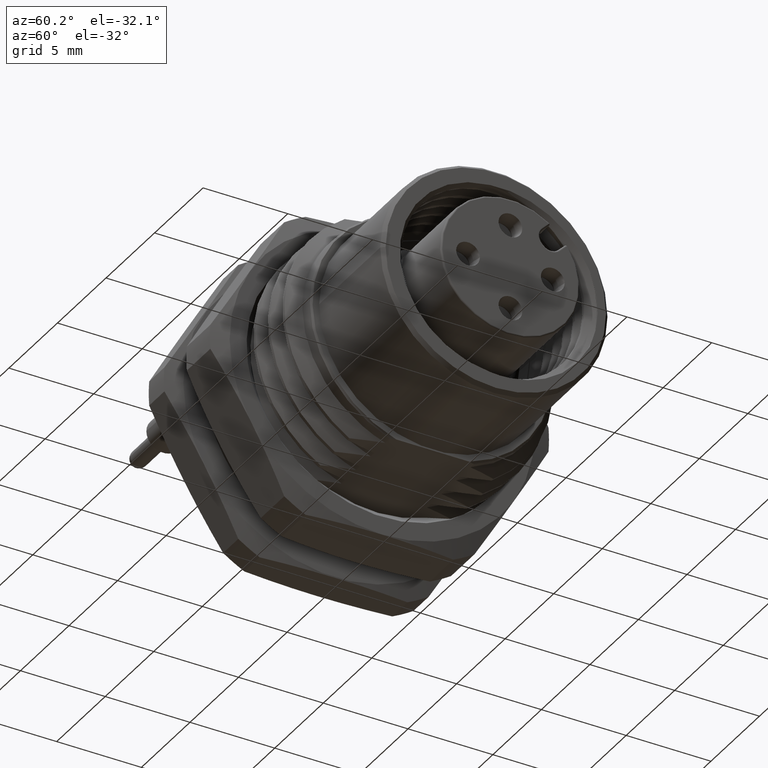
[diagram: clean part render]
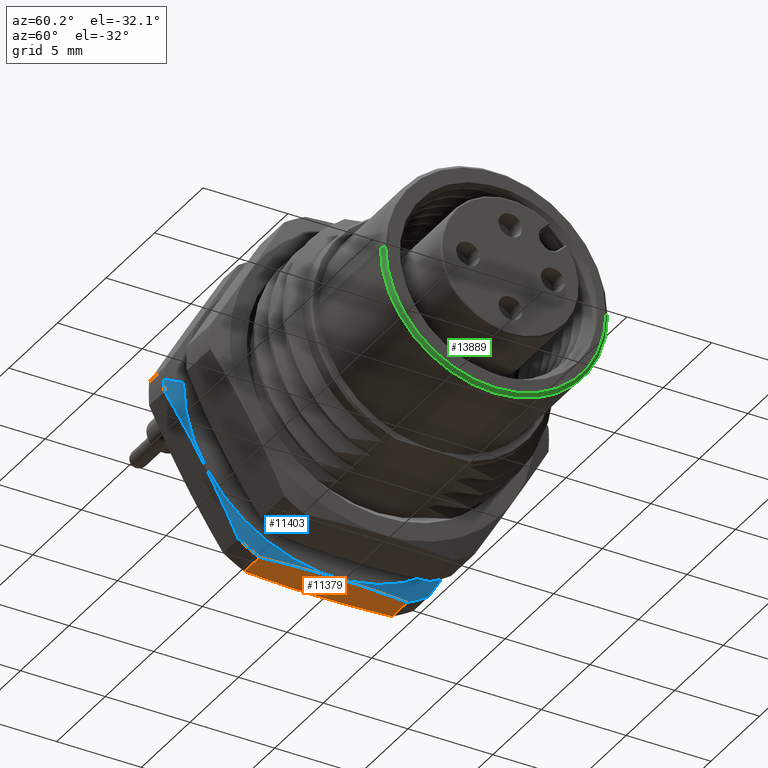
[diagram: same view with three faces highlighted in distinct colors, each labeled with its STEP entity id]
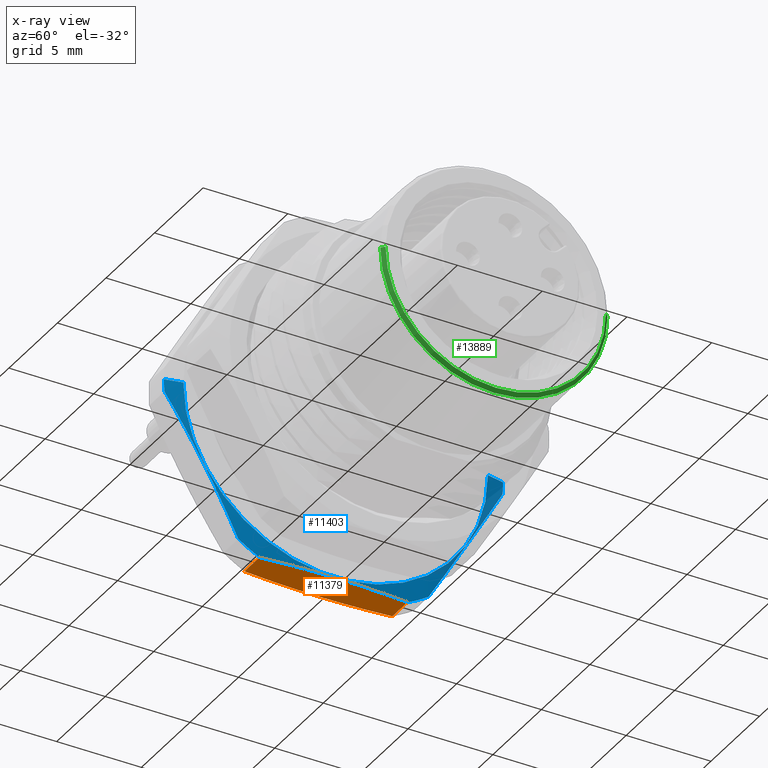
[diagram: x-ray of the same camera — body ghosted, the three highlighted faces saturated]
A machine part, auxiliary view with three faces highlighted in distinct colors.
The next image is the same camera in x-ray (body ghosted, the three faces saturated) — at least one of them is partly hidden behind the body in this view.
Their STEP definitions:

[orange] entity #11379 — the highlighted planar face has unit normal (0, 0, 1).
#1138=DIRECTION('',(1.E0,0.E0,-1.814027457224E-14));
#1139=VECTOR('',#1138,1.566773938136E0);
#1140=CARTESIAN_POINT('',(-1.783386969068E0,-4.358898943541E0,-9.E0));
#1141=LINE('',#1140,#1139);
#1182=CARTESIAN_POINT('',(-2.166130309324E-1,4.358898943541E0,-9.E0));
#1183=CARTESIAN_POINT('',(-1.777878042726E-1,3.939851994490E0,-9.E0));
#1184=CARTESIAN_POINT('',(-1.095479350352E-1,3.104680167966E0,-9.E0));
#1185=CARTESIAN_POINT('',(-3.920296230583E-2,1.869240386030E0,-9.E0));
#1186=CARTESIAN_POINT('',(-2.534829848908E-3,6.242521646530E-1,-9.E0));
#1187=CARTESIAN_POINT('',(-2.540819362706E-3,-6.244692245142E-1,-9.E0));
#1188=CARTESIAN_POINT('',(-3.919866663812E-2,-1.869093789901E0,-9.E0));
#1189=CARTESIAN_POINT('',(-1.095361614986E-1,-3.104524489186E0,-9.E0));
#1190=CARTESIAN_POINT('',(-1.777808974942E-1,-3.939777448514E0,-9.E0));
#1191=CARTESIAN_POINT('',(-2.166130309324E-1,-4.358898943541E0,-9.E0));
#1280=CARTESIAN_POINT('',(-1.783386969068E0,-4.358898943541E0,-9.E0));
#1281=CARTESIAN_POINT('',(-1.822219102317E0,-3.939777450557E0,-9.E0));
#1282=CARTESIAN_POINT('',(-1.890463838078E0,-3.104524494736E0,-9.E0));
#1283=CARTESIAN_POINT('',(-1.960801332946E0,-1.869093798889E0,-9.E0));
#1284=CARTESIAN_POINT('',(-1.997459180467E0,-6.244692353469E-1,-9.E0));
#1285=CARTESIAN_POINT('',(-1.997465170322E0,6.242521538167E-1,-9.E0));
#1286=CARTESIAN_POINT('',(-1.960797038111E0,1.869240377041E0,-9.E0));
#1287=CARTESIAN_POINT('',(-1.890452065389E0,3.104680162416E0,-9.E0));
#1288=CARTESIAN_POINT('',(-1.822212195917E0,3.939851992448E0,-9.E0));
#1289=CARTESIAN_POINT('',(-1.783386969068E0,4.358898943541E0,-9.E0));
#1318=DIRECTION('',(1.E0,3.741431630524E-14,2.721041185836E-14));
#1319=VECTOR('',#1318,1.566773938136E0);
#1320=CARTESIAN_POINT('',(-1.783386969068E0,4.358898943541E0,-9.E0));
#1321=LINE('',#1320,#1319);
#9539=CARTESIAN_POINT('',(-1.783386969068E0,-4.358898943541E0,-9.E0));
#9540=CARTESIAN_POINT('',(-2.166130309324E-1,-4.358898943541E0,-9.E0));
#9541=VERTEX_POINT('',#9539);
#9542=VERTEX_POINT('',#9540);
#9543=VERTEX_POINT('',#1182);
#9544=CARTESIAN_POINT('',(-1.783386969068E0,4.358898943541E0,-9.E0));
#9545=VERTEX_POINT('',#9544);
#11365=CARTESIAN_POINT('',(-9.999999999770E-1,0.E0,-9.E0));
#11366=DIRECTION('',(0.E0,0.E0,1.E0));
#11367=DIRECTION('',(0.E0,-1.E0,0.E0));
#11368=AXIS2_PLACEMENT_3D('',#11365,#11366,#11367);
#11369=PLANE('',#11368);
#11370=ORIENTED_EDGE('',*,*,#11355,.T.);
#11372=ORIENTED_EDGE('',*,*,#11371,.F.);
#11374=ORIENTED_EDGE('',*,*,#11373,.F.);
#11376=ORIENTED_EDGE('',*,*,#11375,.F.);
#11377=EDGE_LOOP('',(#11370,#11372,#11374,#11376));
#11378=FACE_OUTER_BOUND('',#11377,.F.);
#11379=ADVANCED_FACE('',(#11378),#11369,.F.);
#1192=B_SPLINE_CURVE_WITH_KNOTS('',3,(#1182,#1183,#1184,#1185,#1186,#1187,#1188,
#1189,#1190,#1191),.UNSPECIFIED.,.F.,.F.,(4,1,1,1,1,1,1,4),(0.E0,
1.428571428571E-1,2.857142857143E-1,4.285714285714E-1,5.714285714286E-1,
7.142857142857E-1,8.571428571429E-1,1.E0),.UNSPECIFIED.);
#1290=B_SPLINE_CURVE_WITH_KNOTS('',3,(#1280,#1281,#1282,#1283,#1284,#1285,#1286,
#1287,#1288,#1289),.UNSPECIFIED.,.F.,.F.,(4,1,1,1,1,1,1,4),(0.E0,
1.428571428571E-1,2.857142857143E-1,4.285714285714E-1,5.714285714286E-1,
7.142857142857E-1,8.571428571429E-1,1.E0),.UNSPECIFIED.);
#11355=EDGE_CURVE('',#9541,#9542,#1141,.T.);
#11371=EDGE_CURVE('',#9543,#9542,#1192,.T.);
#11373=EDGE_CURVE('',#9545,#9543,#1321,.T.);
#11375=EDGE_CURVE('',#9541,#9545,#1290,.T.);

[blue] entity #11403 — the highlighted conical surface has half-angle 78 deg.
#1142=CARTESIAN_POINT('',(-2.166130309321E-1,0.E0,0.E0));
#1143=DIRECTION('',(-1.E0,0.E0,0.E0));
#1144=DIRECTION('',(0.E0,-4.358898943541E-1,-9.E-1));
#1145=AXIS2_PLACEMENT_3D('',#1142,#1143,#1144);
#1147=CARTESIAN_POINT('',(-2.166130309324E-1,-5.614779162290E0,
-8.274917217635E0));
#1148=CARTESIAN_POINT('',(-1.777878042727E-1,-5.824302636815E0,
-7.912011914379E0));
#1149=CARTESIAN_POINT('',(-1.095479350352E-1,-6.241888550077E0,
-7.188731896084E0));
#1150=CARTESIAN_POINT('',(-3.920296230588E-2,-6.859608441045E0,
-6.118809660082E0));
#1151=CARTESIAN_POINT('',(-2.534829848953E-3,-7.482102551733E0,
-5.040618232957E0));
#1152=CARTESIAN_POINT('',(-2.540819362602E-3,-8.106463246317E0,
-3.959193787689E0));
#1153=CARTESIAN_POINT('',(-3.919866663812E-2,-8.728775529010E0,
-2.881317295890E0));
#1154=CARTESIAN_POINT('',(-1.095361614985E-1,-9.346490878652E0,
-1.811402925694E0));
#1155=CARTESIAN_POINT('',(-1.777808974942E-1,-9.764117358316E0,
-1.088052644330E0));
#1156=CARTESIAN_POINT('',(-2.166130309324E-1,-9.973678105830E0,
-7.250827823645E-1));
#1158=CARTESIAN_POINT('',(-2.166130309321E-1,0.E0,0.E0));
#1159=DIRECTION('',(-1.E0,0.E0,0.E0));
#1160=DIRECTION('',(0.E0,-9.973678105830E-1,-7.250827823646E-2));
#1161=AXIS2_PLACEMENT_3D('',#1158,#1159,#1160);
#1163=DIRECTION('',(2.079116908175E-1,9.781476007339E-1,0.E0));
#1164=VECTOR('',#1163,1.041851134395E0);
#1165=CARTESIAN_POINT('',(-2.166130309323E-1,-1.E1,0.E0));
#1166=LINE('',#1165,#1164);
#1167=DIRECTION('',(-2.079116908175E-1,9.781476007339E-1,0.E0));
#1168=VECTOR('',#1167,1.041851134395E0);
#1169=CARTESIAN_POINT('',(-8.704148513061E-14,8.980915812570E0,0.E0));
#1170=LINE('',#1169,#1168);
#1171=CARTESIAN_POINT('',(-2.166130309324E-1,9.973678105830E0,
-7.250827823645E-1));
#1172=CARTESIAN_POINT('',(-1.777878042727E-1,9.764154631305E0,
-1.087988085620E0));
#1173=CARTESIAN_POINT('',(-1.095479350352E-1,9.346568718043E0,
-1.811268103914E0));
#1174=CARTESIAN_POINT('',(-3.920296230593E-2,8.728848827076E0,
-2.881190339916E0));
#1175=CARTESIAN_POINT('',(-2.534829848910E-3,8.106354716387E0,
-3.959381767040E0));
#1176=CARTESIAN_POINT('',(-2.540819362615E-3,7.481994021804E0,
-5.040806212309E0));
#1177=CARTESIAN_POINT('',(-3.919866663807E-2,6.859681739111E0,
-6.118682704108E0));
#1178=CARTESIAN_POINT('',(-1.095361614986E-1,6.241966389468E0,
-7.188597074305E0));
#1179=CARTESIAN_POINT('',(-1.777808974942E-1,5.824339909804E0,
-7.911947355669E0));
#1180=CARTESIAN_POINT('',(-2.166130309324E-1,5.614779162290E0,
-8.274917217635E0));
#1182=CARTESIAN_POINT('',(-2.166130309324E-1,4.358898943541E0,-9.E0));
#1183=CARTESIAN_POINT('',(-1.777878042726E-1,3.939851994490E0,-9.E0));
#1184=CARTESIAN_POINT('',(-1.095479350352E-1,3.104680167966E0,-9.E0));
#1185=CARTESIAN_POINT('',(-3.920296230583E-2,1.869240386030E0,-9.E0));
#1186=CARTESIAN_POINT('',(-2.534829848908E-3,6.242521646530E-1,-9.E0));
#1187=CARTESIAN_POINT('',(-2.540819362706E-3,-6.244692245142E-1,-9.E0));
#1188=CARTESIAN_POINT('',(-3.919866663812E-2,-1.869093789901E0,-9.E0));
#1189=CARTESIAN_POINT('',(-1.095361614986E-1,-3.104524489186E0,-9.E0));
#1190=CARTESIAN_POINT('',(-1.777808974942E-1,-3.939777448514E0,-9.E0));
#1191=CARTESIAN_POINT('',(-2.166130309324E-1,-4.358898943541E0,-9.E0));
#1265=CARTESIAN_POINT('',(-2.166130309325E-1,0.E0,0.E0));
#1266=DIRECTION('',(1.E0,0.E0,0.E0));
#1267=DIRECTION('',(0.E0,9.973678105830E-1,-7.250827823646E-2));
#1268=AXIS2_PLACEMENT_3D('',#1265,#1266,#1267);
#1322=CARTESIAN_POINT('',(-2.166130309325E-1,0.E0,0.E0));
#1323=DIRECTION('',(1.E0,0.E0,0.E0));
#1324=DIRECTION('',(0.E0,4.358898943541E-1,-9.E-1));
#1325=AXIS2_PLACEMENT_3D('',#1322,#1323,#1324);
#1345=CARTESIAN_POINT('',(-1.305622276959E-13,0.E0,0.E0));
#1346=DIRECTION('',(-1.E0,0.E0,0.E0));
#1347=DIRECTION('',(0.E0,1.E0,0.E0));
#1348=AXIS2_PLACEMENT_3D('',#1345,#1346,#1347);
#9519=CARTESIAN_POINT('',(-1.314504061156E-13,-8.980915812570E0,0.E0));
#9520=CARTESIAN_POINT('',(-1.314504061156E-13,8.980915812570E0,0.E0));
#9521=VERTEX_POINT('',#9519);
#9522=VERTEX_POINT('',#9520);
#9524=CARTESIAN_POINT('',(-2.166130309325E-1,-1.E1,0.E0));
#9526=VERTEX_POINT('',#9524);
#9535=CARTESIAN_POINT('',(-2.166130309325E-1,1.E1,0.E0));
#9537=VERTEX_POINT('',#9535);
#9540=CARTESIAN_POINT('',(-2.166130309324E-1,-4.358898943541E0,-9.E0));
#9542=VERTEX_POINT('',#9540);
#9543=VERTEX_POINT('',#1182);
#9546=CARTESIAN_POINT('',(-2.166130309321E-1,-5.614779162290E0,
-8.274917217635E0));
#9547=VERTEX_POINT('',#9546);
#9548=CARTESIAN_POINT('',(-2.166130309321E-1,-9.973678105830E0,
-7.250827823646E-1));
#9549=VERTEX_POINT('',#9548);
#9550=CARTESIAN_POINT('',(-2.166130309325E-1,9.973678105830E0,
-7.250827823646E-1));
#9551=VERTEX_POINT('',#9550);
#9552=CARTESIAN_POINT('',(-2.166130309325E-1,5.614779162290E0,
-8.274917217635E0));
#9553=VERTEX_POINT('',#9552);
#11380=CARTESIAN_POINT('',(-1.083065154661E-1,0.E0,0.E0));
#11381=DIRECTION('',(-1.E0,0.E0,0.E0));
#11382=DIRECTION('',(0.E0,1.E0,0.E0));
#11383=AXIS2_PLACEMENT_3D('',#11380,#11381,#11382);
#11384=CONICAL_SURFACE('',#11383,9.490457906285E0,7.800000000002E1);
#11385=ORIENTED_EDGE('',*,*,#11360,.T.);
#11386=ORIENTED_EDGE('',*,*,#11345,.T.);
#11387=ORIENTED_EDGE('',*,*,#11330,.T.);
#11389=ORIENTED_EDGE('',*,*,#11388,.T.);
#11391=ORIENTED_EDGE('',*,*,#11390,.F.);
#11393=ORIENTED_EDGE('',*,*,#11392,.T.);
#11395=ORIENTED_EDGE('',*,*,#11394,.F.);
#11397=ORIENTED_EDGE('',*,*,#11396,.T.);
#11399=ORIENTED_EDGE('',*,*,#11398,.F.);
#11400=ORIENTED_EDGE('',*,*,#11371,.T.);
#11401=EDGE_LOOP('',(#11385,#11386,#11387,#11389,#11391,#11393,#11395,#11397,
#11399,#11400));
#11402=FACE_OUTER_BOUND('',#11401,.F.);
#11403=ADVANCED_FACE('',(#11402),#11384,.T.);
#1146=CIRCLE('',#1145,1.E1);
#1157=B_SPLINE_CURVE_WITH_KNOTS('',3,(#1147,#1148,#1149,#1150,#1151,#1152,#1153,
#1154,#1155,#1156),.UNSPECIFIED.,.F.,.F.,(4,1,1,1,1,1,1,4),(0.E0,
1.428571428571E-1,2.857142857143E-1,4.285714285714E-1,5.714285714286E-1,
7.142857142857E-1,8.571428571429E-1,1.E0),.UNSPECIFIED.);
#1162=CIRCLE('',#1161,1.E1);
#1181=B_SPLINE_CURVE_WITH_KNOTS('',3,(#1171,#1172,#1173,#1174,#1175,#1176,#1177,
#1178,#1179,#1180),.UNSPECIFIED.,.F.,.F.,(4,1,1,1,1,1,1,4),(0.E0,
1.428571428571E-1,2.857142857143E-1,4.285714285714E-1,5.714285714286E-1,
7.142857142857E-1,8.571428571429E-1,1.E0),.UNSPECIFIED.);
#1192=B_SPLINE_CURVE_WITH_KNOTS('',3,(#1182,#1183,#1184,#1185,#1186,#1187,#1188,
#1189,#1190,#1191),.UNSPECIFIED.,.F.,.F.,(4,1,1,1,1,1,1,4),(0.E0,
1.428571428571E-1,2.857142857143E-1,4.285714285714E-1,5.714285714286E-1,
7.142857142857E-1,8.571428571429E-1,1.E0),.UNSPECIFIED.);
#1269=CIRCLE('',#1268,1.E1);
#1326=CIRCLE('',#1325,1.E1);
#1349=CIRCLE('',#1348,8.980915812570E0);
#11330=EDGE_CURVE('',#9549,#9526,#1162,.T.);
#11345=EDGE_CURVE('',#9547,#9549,#1157,.T.);
#11360=EDGE_CURVE('',#9542,#9547,#1146,.T.);
#11371=EDGE_CURVE('',#9543,#9542,#1192,.T.);
#11388=EDGE_CURVE('',#9526,#9521,#1166,.T.);
#11390=EDGE_CURVE('',#9522,#9521,#1349,.T.);
#11392=EDGE_CURVE('',#9522,#9537,#1170,.T.);
#11394=EDGE_CURVE('',#9551,#9537,#1269,.T.);
#11396=EDGE_CURVE('',#9551,#9553,#1181,.T.);
#11398=EDGE_CURVE('',#9543,#9553,#1326,.T.);

[green] entity #13889 — the highlighted conical surface has half-angle 45 deg.
#2965=CARTESIAN_POINT('',(1.63E1,0.E0,0.E0));
#2966=DIRECTION('',(-1.E0,0.E0,0.E0));
#2967=DIRECTION('',(0.E0,1.E0,0.E0));
#2968=AXIS2_PLACEMENT_3D('',#2965,#2966,#2967);
#2970=CARTESIAN_POINT('',(1.63E1,0.E0,0.E0));
#2971=DIRECTION('',(-1.E0,0.E0,0.E0));
#2972=DIRECTION('',(0.E0,0.E0,-1.E0));
#2973=AXIS2_PLACEMENT_3D('',#2970,#2971,#2972);
#2975=DIRECTION('',(7.071067811805E-1,7.071067811925E-1,6.523743699270E-10));
#2976=VECTOR('',#2975,2.828427125220E-1);
#2977=CARTESIAN_POINT('',(1.63E1,-6.7E0,0.E0));
#2978=LINE('',#2977,#2976);
#2979=DIRECTION('',(-7.071067811452E-1,7.071067812279E-1,4.358122237005E-10));
#2980=VECTOR('',#2979,2.828427125079E-1);
#2981=CARTESIAN_POINT('',(1.650000000003E1,6.499999999965E0,
-1.845195414983E-10));
#2982=LINE('',#2981,#2980);
#2988=CARTESIAN_POINT('',(1.65E1,0.E0,0.E0));
#2989=DIRECTION('',(-1.E0,0.E0,0.E0));
#2990=DIRECTION('',(0.E0,1.E0,0.E0));
#2991=AXIS2_PLACEMENT_3D('',#2988,#2989,#2990);
#2993=CARTESIAN_POINT('',(1.65E1,0.E0,0.E0));
#2994=DIRECTION('',(-1.E0,0.E0,0.E0));
#2995=DIRECTION('',(0.E0,1.701203280810E-14,-1.E0));
#2996=AXIS2_PLACEMENT_3D('',#2993,#2994,#2995);
#9357=CARTESIAN_POINT('',(1.65E1,-6.499999999998E0,0.E0));
#9358=CARTESIAN_POINT('',(1.65E1,6.499999999998E0,0.E0));
#9359=VERTEX_POINT('',#9357);
#9360=VERTEX_POINT('',#9358);
#9361=CARTESIAN_POINT('',(1.65E1,1.100880450427E-13,-6.499999999998E0));
#9362=VERTEX_POINT('',#9361);
#9367=CARTESIAN_POINT('',(1.63E1,-6.7E0,0.E0));
#9368=VERTEX_POINT('',#9367);
#9369=CARTESIAN_POINT('',(1.63E1,6.7E0,-2.450129200113E-10));
#9370=VERTEX_POINT('',#9369);
#10268=CARTESIAN_POINT('',(1.63E1,-3.016423373767E-14,-6.700000000001E0));
#10269=VERTEX_POINT('',#10268);
#13872=CARTESIAN_POINT('',(1.640000000005E1,0.E0,0.E0));
#13873=DIRECTION('',(-1.E0,0.E0,0.E0));
#13874=DIRECTION('',(0.E0,0.E0,-1.E0));
#13875=AXIS2_PLACEMENT_3D('',#13872,#13873,#13874);
#13876=CONICAL_SURFACE('',#13875,6.599999999949E0,4.500000000077E1);
#13877=ORIENTED_EDGE('',*,*,#13864,.T.);
#13878=ORIENTED_EDGE('',*,*,#13862,.T.);
#13880=ORIENTED_EDGE('',*,*,#13879,.T.);
#13882=ORIENTED_EDGE('',*,*,#13881,.F.);
#13884=ORIENTED_EDGE('',*,*,#13883,.F.);
#13886=ORIENTED_EDGE('',*,*,#13885,.T.);
#13887=EDGE_LOOP('',(#13877,#13878,#13880,#13882,#13884,#13886));
#13888=FACE_OUTER_BOUND('',#13887,.F.);
#13889=ADVANCED_FACE('',(#13888),#13876,.T.);
#2969=CIRCLE('',#2968,6.700000000001E0);
#2974=CIRCLE('',#2973,6.700000000001E0);
#2992=CIRCLE('',#2991,6.499999999998E0);
#2997=CIRCLE('',#2996,6.499999999998E0);
#13862=EDGE_CURVE('',#10269,#9368,#2974,.T.);
#13864=EDGE_CURVE('',#9370,#10269,#2969,.T.);
#13879=EDGE_CURVE('',#9368,#9359,#2978,.T.);
#13881=EDGE_CURVE('',#9362,#9359,#2997,.T.);
#13883=EDGE_CURVE('',#9360,#9362,#2992,.T.);
#13885=EDGE_CURVE('',#9360,#9370,#2982,.T.);